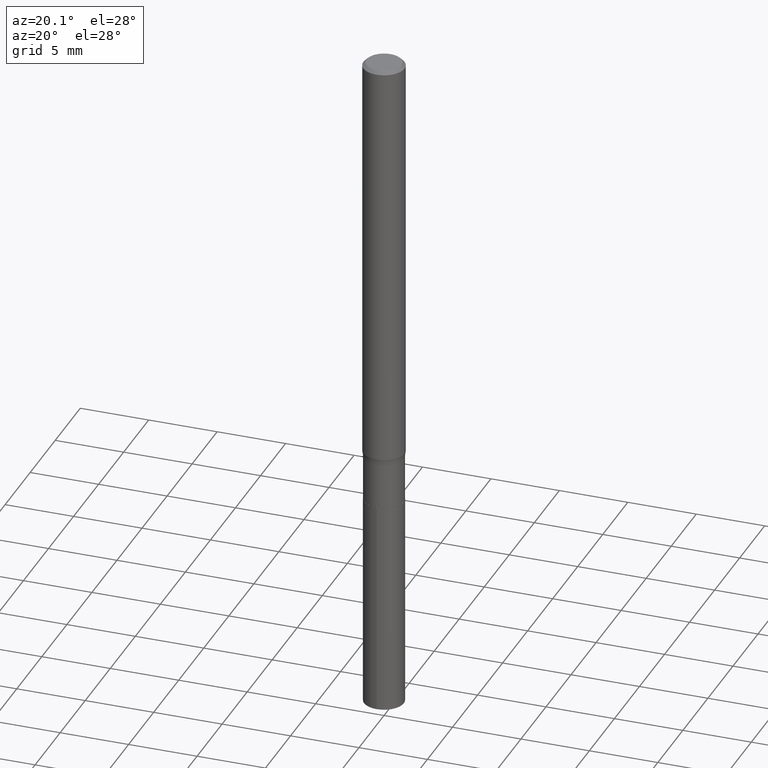
[diagram: clean part render]
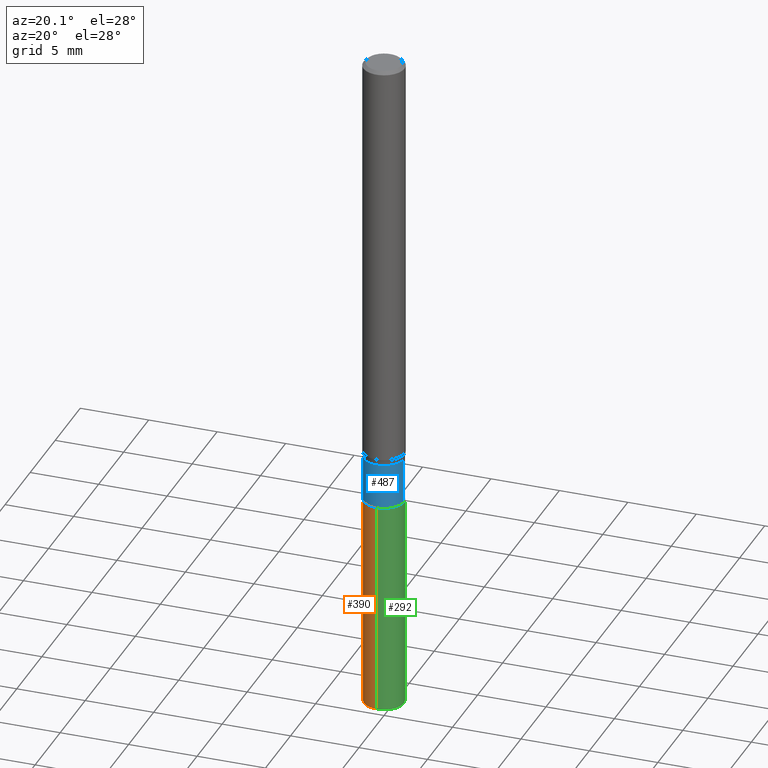
[diagram: same view with three faces highlighted in distinct colors, each labeled with its STEP entity id]
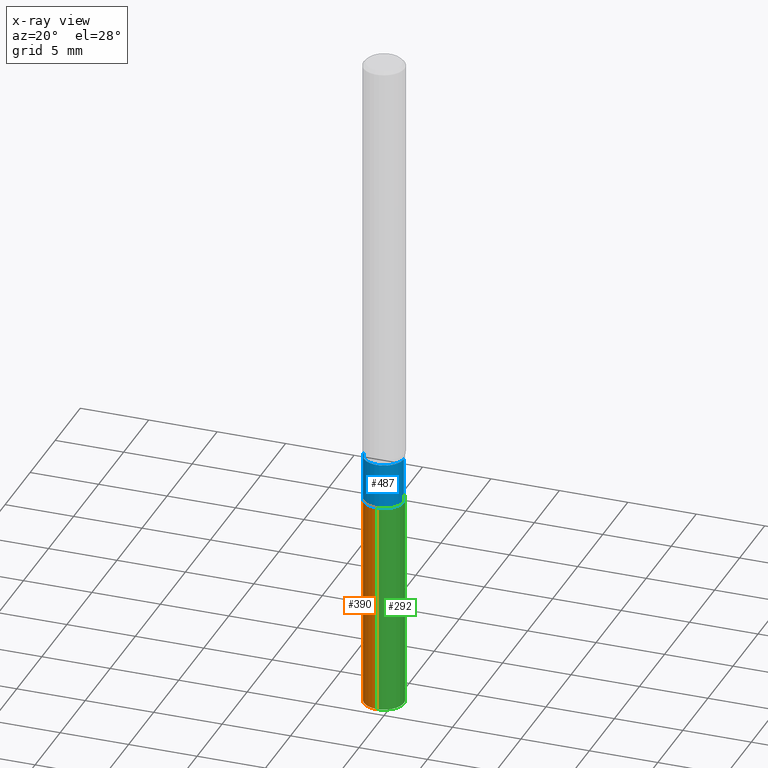
[diagram: x-ray of the same camera — body ghosted, the three highlighted faces saturated]
A machine part, auxiliary view with three faces highlighted in distinct colors.
The next image is the same camera in x-ray (body ghosted, the three faces saturated) — at least one of them is partly hidden behind the body in this view.
Their STEP definitions:

[orange] entity #390 — the highlighted cylindrical surface (edge-blend (fillet) strip) has radius 1.4503 mm, axis along (-0, 0, 1).
#3 = VERTEX_POINT ( 'NONE', #91 ) ;
#8 = CARTESIAN_POINT ( 'NONE',  ( 3.263967215615300846E-29, -4.660080142953945431E-15, -1.334699999999999775 ) ) ;
#18 = CARTESIAN_POINT ( 'NONE',  ( -3.987271688958379871E-16, -0.05710000000000679116, -1.950496439155009920 ) ) ;
#21 = CARTESIAN_POINT ( 'NONE',  ( 4.057199021190649179E-16, 0.05709999999999533504, -1.334699999999999998 ) ) ;
#37 = DIRECTION ( 'NONE',  ( -2.445496028877088501E-29, 3.491442354398851072E-15, 1.000000000000000000 ) ) ;
#38 = VERTEX_POINT ( 'NONE', #21 ) ;
#58 = EDGE_CURVE ( 'NONE', #198, #3, #131, .T. ) ;
#88 = EDGE_LOOP ( 'NONE', ( #365, #221, #238, #429 ) ) ;
#90 = DIRECTION ( 'NONE',  ( -2.445496028877088781E-29, 3.491442354398851072E-15, 1.000000000000000000 ) ) ;
#91 = CARTESIAN_POINT ( 'NONE',  ( -3.987271688958531234E-16, -0.05710000000000465398, -1.334699999999999553 ) ) ;
#129 = EDGE_CURVE ( 'NONE', #38, #3, #400, .T. ) ;
#131 = LINE ( 'NONE', #280, #132 ) ;
#132 = VECTOR ( 'NONE', #90, 39.37007874015748143 ) ;
#136 = AXIS2_PLACEMENT_3D ( 'NONE', #225, #37, #185 ) ;
#145 = DIRECTION ( 'NONE',  ( -6.982962677686265133E-15, -1.000000000000000000, 4.784322230585399479E-15 ) ) ;
#159 = EDGE_CURVE ( 'NONE', #490, #198, #160, .T. ) ;
#160 = CIRCLE ( 'NONE', #136, 0.05709999999999999798 ) ;
#185 = DIRECTION ( 'NONE',  ( -6.982962677686265133E-15, -1.000000000000000000, 4.784322230585399479E-15 ) ) ;
#188 = CARTESIAN_POINT ( 'NONE',  ( 3.263967215615300846E-29, -4.660080142953945431E-15, -1.334699999999999775 ) ) ;
#198 = VERTEX_POINT ( 'NONE', #18 ) ;
#199 = FACE_OUTER_BOUND ( 'NONE', #88, .T. ) ;
#200 = VECTOR ( 'NONE', #232, 39.37007874015748143 ) ;
#221 = ORIENTED_EDGE ( 'NONE', *, *, #159, .T. ) ;
#225 = CARTESIAN_POINT ( 'NONE',  ( 4.769894962165531055E-29, -6.810097912307744286E-15, -1.950496439155010142 ) ) ;
#232 = DIRECTION ( 'NONE',  ( -2.445496028877088781E-29, 3.491442354398851072E-15, 1.000000000000000000 ) ) ;
#238 = ORIENTED_EDGE ( 'NONE', *, *, #58, .T. ) ;
#243 = EDGE_CURVE ( 'NONE', #490, #38, #455, .T. ) ;
#279 = DIRECTION ( 'NONE',  ( -2.445496028877088501E-29, 3.491442354398851072E-15, 1.000000000000000000 ) ) ;
#280 = CARTESIAN_POINT ( 'NONE',  ( -3.987271688958531234E-16, -0.05710000000000465398, -1.334699999999999553 ) ) ;
#299 = DIRECTION ( 'NONE',  ( -2.445496028877088501E-29, 3.491442354398851072E-15, 1.000000000000000000 ) ) ;
#315 = DIRECTION ( 'NONE',  ( -6.982962677686265133E-15, -1.000000000000000000, 4.784322230585399479E-15 ) ) ;
#352 = AXIS2_PLACEMENT_3D ( 'NONE', #188, #299, #145 ) ;
#356 = CARTESIAN_POINT ( 'NONE',  ( 4.057199021190497323E-16, 0.05709999999999533504, -1.334699999999999998 ) ) ;
#358 = CYLINDRICAL_SURFACE ( 'NONE', #444, 0.05709999999999999798 ) ;
#365 = ORIENTED_EDGE ( 'NONE', *, *, #243, .F. ) ;
#390 = ADVANCED_FACE ( 'NONE', ( #199 ), #358, .T. ) ;
#400 = CIRCLE ( 'NONE', #352, 0.05709999999999999798 ) ;
#409 = CARTESIAN_POINT ( 'NONE',  ( 4.057199021190646713E-16, 0.05709999999999316317, -1.950496439155010586 ) ) ;
#429 = ORIENTED_EDGE ( 'NONE', *, *, #129, .F. ) ;
#444 = AXIS2_PLACEMENT_3D ( 'NONE', #8, #279, #315 ) ;
#455 = LINE ( 'NONE', #356, #200 ) ;
#490 = VERTEX_POINT ( 'NONE', #409 ) ;

[blue] entity #487 — the highlighted cylindrical surface (edge-blend (fillet) strip) has radius 1.4503 mm, axis along (-0, 0, 1).
#9 = EDGE_CURVE ( 'NONE', #193, #35, #310, .T. ) ;
#20 = AXIS2_PLACEMENT_3D ( 'NONE', #133, #447, #210 ) ;
#27 = DIRECTION ( 'NONE',  ( -2.445468806185136877E-29, 3.491481338843145188E-15, 1.000000000000000000 ) ) ;
#35 = VERTEX_POINT ( 'NONE', #442 ) ;
#67 = LINE ( 'NONE', #222, #405 ) ;
#101 = EDGE_LOOP ( 'NONE', ( #202, #350, #276, #115 ) ) ;
#107 = EDGE_CURVE ( 'NONE', #35, #354, #67, .T. ) ;
#115 = ORIENTED_EDGE ( 'NONE', *, *, #328, .F. ) ;
#133 = CARTESIAN_POINT ( 'NONE',  ( 0.000000000000000000, 0.000000000000000000, 0.000000000000000000 ) ) ;
#149 = CARTESIAN_POINT ( 'NONE',  ( -0.05709999999999997716, 4.057199021190170439E-16, -2.808711936535549889E-30 ) ) ;
#152 = CIRCLE ( 'NONE', #245, 0.05709999999999997022 ) ;
#187 = LINE ( 'NONE', #149, #342 ) ;
#193 = VERTEX_POINT ( 'NONE', #459 ) ;
#202 = ORIENTED_EDGE ( 'NONE', *, *, #463, .F. ) ;
#210 = DIRECTION ( 'NONE',  ( 1.000000000000000000, -6.982962677686266711E-15, 4.876176775795935793E-29 ) ) ;
#215 = DIRECTION ( 'NONE',  ( -2.445468806185136877E-29, 3.491481338843145188E-15, 1.000000000000000000 ) ) ;
#222 = CARTESIAN_POINT ( 'NONE',  ( 0.05709999999999997716, -3.987271688958856639E-16, 2.784296938979478177E-30 ) ) ;
#241 = CARTESIAN_POINT ( 'NONE',  ( 0.05709999999999997022, -4.600375812059727642E-15, -1.203400000000000025 ) ) ;
#245 = AXIS2_PLACEMENT_3D ( 'NONE', #427, #351, #467 ) ;
#259 = CYLINDRICAL_SURFACE ( 'NONE', #20, 0.05709999999999997716 ) ;
#274 = CARTESIAN_POINT ( 'NONE',  ( -0.05709999999999997022, -4.024271620605165884E-15, -1.203400000000000025 ) ) ;
#276 = ORIENTED_EDGE ( 'NONE', *, *, #107, .T. ) ;
#290 = CARTESIAN_POINT ( 'NONE',  ( 3.262744481212208605E-29, -4.658334402284523139E-15, -1.334199999999999608 ) ) ;
#310 = CIRCLE ( 'NONE', #456, 0.05709999999999998410 ) ;
#324 = FACE_OUTER_BOUND ( 'NONE', #101, .T. ) ;
#325 = VERTEX_POINT ( 'NONE', #274 ) ;
#328 = EDGE_CURVE ( 'NONE', #325, #354, #152, .T. ) ;
#342 = VECTOR ( 'NONE', #215, 39.37007874015748143 ) ;
#350 = ORIENTED_EDGE ( 'NONE', *, *, #9, .T. ) ;
#351 = DIRECTION ( 'NONE',  ( -2.445468806185136597E-29, 3.491481338843145583E-15, 1.000000000000000000 ) ) ;
#354 = VERTEX_POINT ( 'NONE', #241 ) ;
#404 = DIRECTION ( 'NONE',  ( 1.000000000000000000, -6.982962677686261189E-15, 0.000000000000000000 ) ) ;
#405 = VECTOR ( 'NONE', #27, 39.37007874015748143 ) ;
#427 = CARTESIAN_POINT ( 'NONE',  ( 2.942877161363193285E-29, -4.201648643163841239E-15, -1.203400000000000025 ) ) ;
#442 = CARTESIAN_POINT ( 'NONE',  ( 0.05709999999999998410, -5.057061571180408753E-15, -1.334199999999999608 ) ) ;
#447 = DIRECTION ( 'NONE',  ( -2.445468806185136597E-29, 3.491481338843145583E-15, 1.000000000000000000 ) ) ;
#456 = AXIS2_PLACEMENT_3D ( 'NONE', #290, #476, #404 ) ;
#459 = CARTESIAN_POINT ( 'NONE',  ( -0.05709999999999998410, -4.024271620605165884E-15, -1.334199999999999608 ) ) ;
#463 = EDGE_CURVE ( 'NONE', #193, #325, #187, .T. ) ;
#467 = DIRECTION ( 'NONE',  ( 1.000000000000000000, -6.982962677686271444E-15, 0.000000000000000000 ) ) ;
#476 = DIRECTION ( 'NONE',  ( -2.445468806185136597E-29, 3.491481338843145583E-15, 1.000000000000000000 ) ) ;
#487 = ADVANCED_FACE ( 'NONE', ( #324 ), #259, .T. ) ;

[green] entity #292 — the highlighted cylindrical surface (edge-blend (fillet) strip) has radius 1.4503 mm, axis along (-0, 0, 1).
#3 = VERTEX_POINT ( 'NONE', #91 ) ;
#18 = CARTESIAN_POINT ( 'NONE',  ( -3.987271688958379871E-16, -0.05710000000000679116, -1.950496439155009920 ) ) ;
#21 = CARTESIAN_POINT ( 'NONE',  ( 4.057199021190649179E-16, 0.05709999999999533504, -1.334699999999999998 ) ) ;
#38 = VERTEX_POINT ( 'NONE', #21 ) ;
#58 = EDGE_CURVE ( 'NONE', #198, #3, #131, .T. ) ;
#62 = CARTESIAN_POINT ( 'NONE',  ( 3.263967215615300846E-29, -4.660080142953945431E-15, -1.334699999999999775 ) ) ;
#87 = DIRECTION ( 'NONE',  ( -6.982962677686265133E-15, -1.000000000000000000, 4.784322230585399479E-15 ) ) ;
#90 = DIRECTION ( 'NONE',  ( -2.445496028877088781E-29, 3.491442354398851072E-15, 1.000000000000000000 ) ) ;
#91 = CARTESIAN_POINT ( 'NONE',  ( -3.987271688958531234E-16, -0.05710000000000465398, -1.334699999999999553 ) ) ;
#120 = CARTESIAN_POINT ( 'NONE',  ( 4.769894962165531055E-29, -6.810097912307744286E-15, -1.950496439155010142 ) ) ;
#131 = LINE ( 'NONE', #280, #132 ) ;
#132 = VECTOR ( 'NONE', #90, 39.37007874015748143 ) ;
#139 = FACE_OUTER_BOUND ( 'NONE', #302, .T. ) ;
#157 = DIRECTION ( 'NONE',  ( -2.445496028877088501E-29, 3.491442354398851072E-15, 1.000000000000000000 ) ) ;
#173 = DIRECTION ( 'NONE',  ( -2.445496028877088501E-29, 3.491442354398851072E-15, 1.000000000000000000 ) ) ;
#182 = CARTESIAN_POINT ( 'NONE',  ( 3.263967215615300846E-29, -4.660080142953945431E-15, -1.334699999999999775 ) ) ;
#184 = CIRCLE ( 'NONE', #372, 0.05709999999999999798 ) ;
#198 = VERTEX_POINT ( 'NONE', #18 ) ;
#200 = VECTOR ( 'NONE', #232, 39.37007874015748143 ) ;
#205 = AXIS2_PLACEMENT_3D ( 'NONE', #62, #374, #336 ) ;
#208 = DIRECTION ( 'NONE',  ( -6.982962677686265133E-15, -1.000000000000000000, 4.784322230585399479E-15 ) ) ;
#230 = ORIENTED_EDGE ( 'NONE', *, *, #243, .T. ) ;
#232 = DIRECTION ( 'NONE',  ( -2.445496028877088781E-29, 3.491442354398851072E-15, 1.000000000000000000 ) ) ;
#243 = EDGE_CURVE ( 'NONE', #490, #38, #455, .T. ) ;
#247 = CIRCLE ( 'NONE', #288, 0.05709999999999999798 ) ;
#280 = CARTESIAN_POINT ( 'NONE',  ( -3.987271688958531234E-16, -0.05710000000000465398, -1.334699999999999553 ) ) ;
#288 = AXIS2_PLACEMENT_3D ( 'NONE', #182, #173, #208 ) ;
#292 = ADVANCED_FACE ( 'NONE', ( #139 ), #378, .T. ) ;
#302 = EDGE_LOOP ( 'NONE', ( #327, #230, #488, #483 ) ) ;
#327 = ORIENTED_EDGE ( 'NONE', *, *, #361, .T. ) ;
#336 = DIRECTION ( 'NONE',  ( -6.982962677686265133E-15, -1.000000000000000000, 4.784322230585399479E-15 ) ) ;
#356 = CARTESIAN_POINT ( 'NONE',  ( 4.057199021190497323E-16, 0.05709999999999533504, -1.334699999999999998 ) ) ;
#361 = EDGE_CURVE ( 'NONE', #198, #490, #184, .T. ) ;
#372 = AXIS2_PLACEMENT_3D ( 'NONE', #120, #157, #87 ) ;
#374 = DIRECTION ( 'NONE',  ( -2.445496028877088501E-29, 3.491442354398851072E-15, 1.000000000000000000 ) ) ;
#378 = CYLINDRICAL_SURFACE ( 'NONE', #205, 0.05709999999999999798 ) ;
#409 = CARTESIAN_POINT ( 'NONE',  ( 4.057199021190646713E-16, 0.05709999999999316317, -1.950496439155010586 ) ) ;
#455 = LINE ( 'NONE', #356, #200 ) ;
#474 = EDGE_CURVE ( 'NONE', #3, #38, #247, .T. ) ;
#483 = ORIENTED_EDGE ( 'NONE', *, *, #58, .F. ) ;
#488 = ORIENTED_EDGE ( 'NONE', *, *, #474, .F. ) ;
#490 = VERTEX_POINT ( 'NONE', #409 ) ;